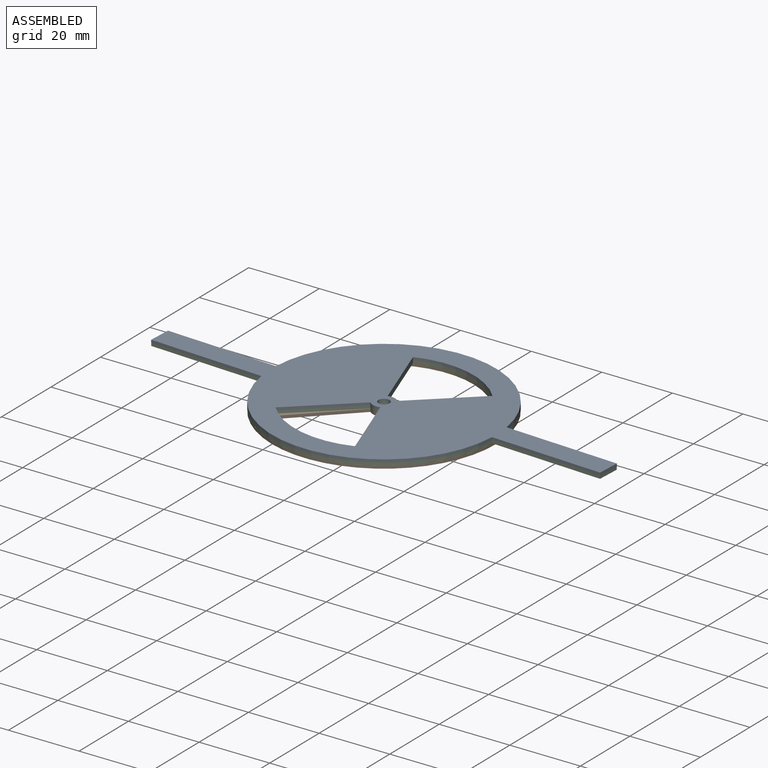
[diagram: assembled view]
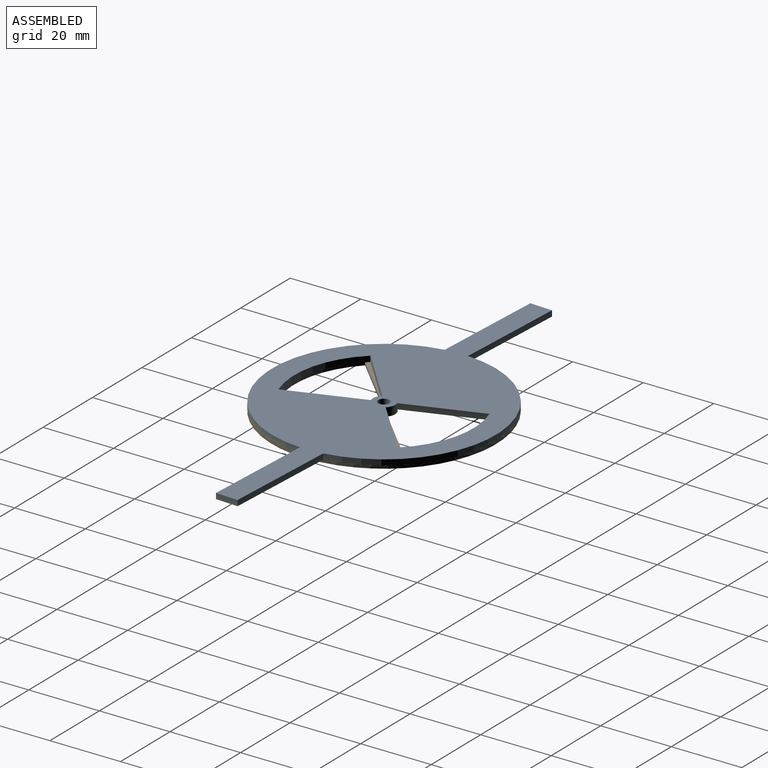
[diagram: assembled view, second angle]
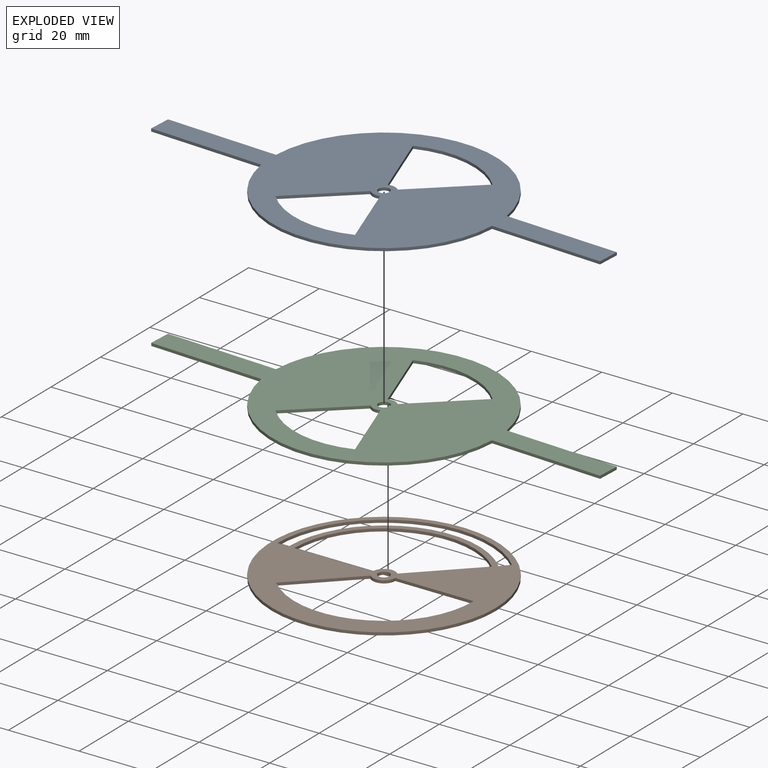
[diagram: exploded view]
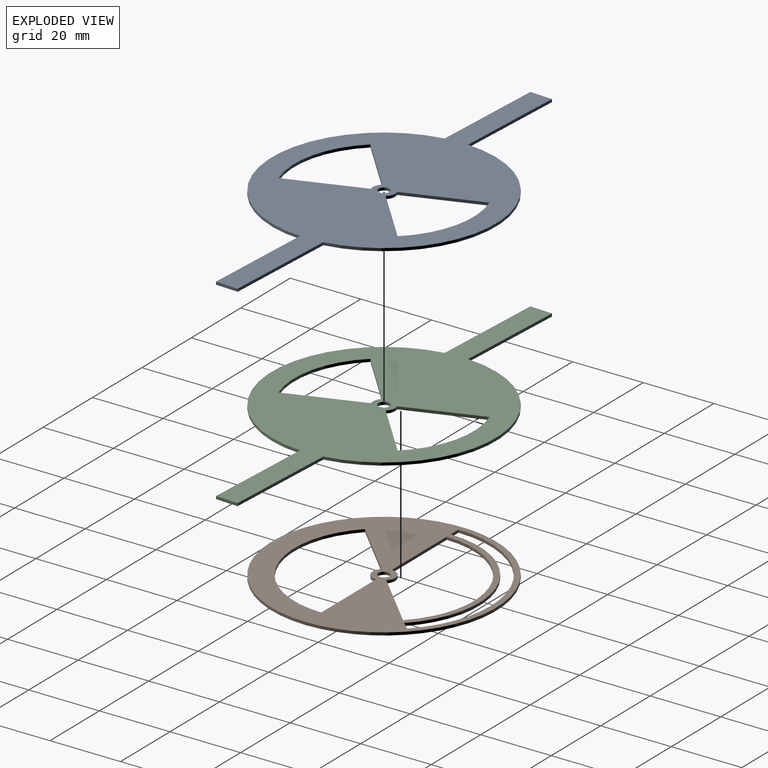
[diagram: exploded view, second angle]
ASSEMBLY  parts=3 mates=2
PART A: 19 faces, bbox 127x63.5x0.8 mm
  f0: plane 31.75x0.79mm, normal (0,1,0), area 25.2mm2, adj f1,f16,f17,f18
  f1: plane 6.35x0.79mm, normal (-1,0,0), area 5mm2, adj f0,f2,f17,f18
  f2: plane 32.39x0.79mm, normal (0,-1,0), area 25.7mm2, adj f1,f3,f17,f18
  f3: cylinder r=31.75mm len=62.86mm, axis (0,0,-1), area 74.1mm2, adj f2,f4,f17,f18
  f4: plane 31.75x0.79mm, normal (0,-1,0), area 25.2mm2, adj f3,f5,f17,f18
  f5: plane 6.35x0.79mm, normal (1,0,0), area 5mm2, adj f4,f6,f17,f18
  f6: plane 32.39x0.79mm, normal (0,1,0), area 25.7mm2, adj f5,f16,f17,f18
  f7: cylinder r=25.4mm len=27.68mm, axis (0,0,-1), area 23.8mm2, adj f8,f13,f17,f18
  f8: plane 15.72x15.72mm, normal (-0.71,0.71,0), area 17.6mm2, adj f7,f9,f17,f18
  f9: cylinder r=3.17mm len=3.46mm, axis (0,0,-1), area 3mm2, adj f8,f13,f17,f18
  f10: plane 15.72x15.72mm, normal (0.71,-0.71,0), area 17.6mm2, adj f11,f15,f17,f18
  f11: cylinder r=3.17mm len=3.46mm, axis (0,0,-1), area 3mm2, adj f10,f12,f17,f18
  f12: plane 20.53x8.51mm, normal (-0.92,-0.38,0), area 17.6mm2, adj f11,f15,f17,f18
  f13: plane 20.53x8.51mm, normal (0.92,0.38,0), area 17.6mm2, adj f7,f9,f17,f18
  f14: cylinder r=1.59mm len=3.18mm, axis (0,0,-1), area 7.9mm2, adj f17,f18
  f15: cylinder r=25.4mm len=27.68mm, axis (0,0,-1), area 23.8mm2, adj f10,f12,f17,f18
  f16: cylinder r=31.75mm len=62.86mm, axis (0,0,-1), area 74.1mm2, adj f0,f6,f17,f18
  f17: plane 127x63.5mm, normal (0,0,1), area 2816.7mm2, adj f0,f1,f2,f3,f4,f5,f6,f7
  f18: plane 127x63.5mm, normal (0,0,-1), area 2816.7mm2, adj f0,f1,f2,f3,f4,f5,f6,f7
PART B: 16 faces, bbox 63.5x63.5x0.8 mm
  f0: plane 15.72x15.72mm, normal (0.71,-0.71,0), area 17.6mm2, adj f1,f13,f14,f15
  f1: cylinder r=3.17mm len=5.42mm, axis (0,0,-1), area 5.9mm2, adj f0,f2,f14,f15
  f2: plane 22.23x0.79mm, normal (0,-1,0), area 17.6mm2, adj f1,f13,f14,f15
  f3: cylinder r=26.99mm len=46.07mm, axis (0,0,-1), area 50.5mm2, adj f4,f9,f14,f15
  f4: plane 3.18x0.79mm, normal (0,1,0), area 2.5mm2, adj f3,f5,f14,f15
  f5: cylinder r=30.16mm len=51.39mm, axis (0,0,-1), area 56.3mm2, adj f4,f9,f14,f15
  f6: cylinder r=25.4mm len=43.36mm, axis (0,0,-1), area 47.5mm2, adj f7,f12,f14,f15
  f7: plane 15.72x15.72mm, normal (-0.71,0.71,0), area 17.6mm2, adj f6,f8,f14,f15
  f8: cylinder r=3.17mm len=5.42mm, axis (0,0,-1), area 5.9mm2, adj f7,f12,f14,f15
  f9: plane 2.34x2.15mm, normal (-0.74,0.68,0), area 2.5mm2, adj f3,f5,f14,f15
  f10: cylinder r=31.75mm len=63.5mm, axis (0,0,-1), area 158.3mm2, adj f14,f15
  f11: cylinder r=1.59mm len=3.18mm, axis (0,0,-1), area 7.9mm2, adj f14,f15
  f12: plane 22.23x0.79mm, normal (0,1,0), area 17.6mm2, adj f6,f8,f14,f15
  f13: cylinder r=25.4mm len=43.36mm, axis (0,0,-1), area 47.5mm2, adj f0,f2,f14,f15
  f14: plane 63.5x63.5mm, normal (0,0,1), area 1449.1mm2, adj f0,f1,f2,f3,f4,f5,f6,f7
  f15: plane 63.5x63.5mm, normal (0,0,-1), area 1449.1mm2, adj f0,f1,f2,f3,f4,f5,f6,f7
PART C: same geometry as A
PLACE A rot(axis=(0,0,-1),2.9deg) t=(25.99,-5.18,-26.65)mm
PLACE B t=(25.99,-5.18,-28.24)mm fixed
PLACE C rot(axis=(0,0,-1),2.9deg) t=(25.99,-5.18,-27.44)mm
MATE revolute C.f16 <-> A.f3  axis (0,0,1) through (25.99,-5.18,-26.65)mm
MATE revolute B.f11 <-> C.f3  axis (0,0,1) through (25.99,-5.18,-27.44)mm
